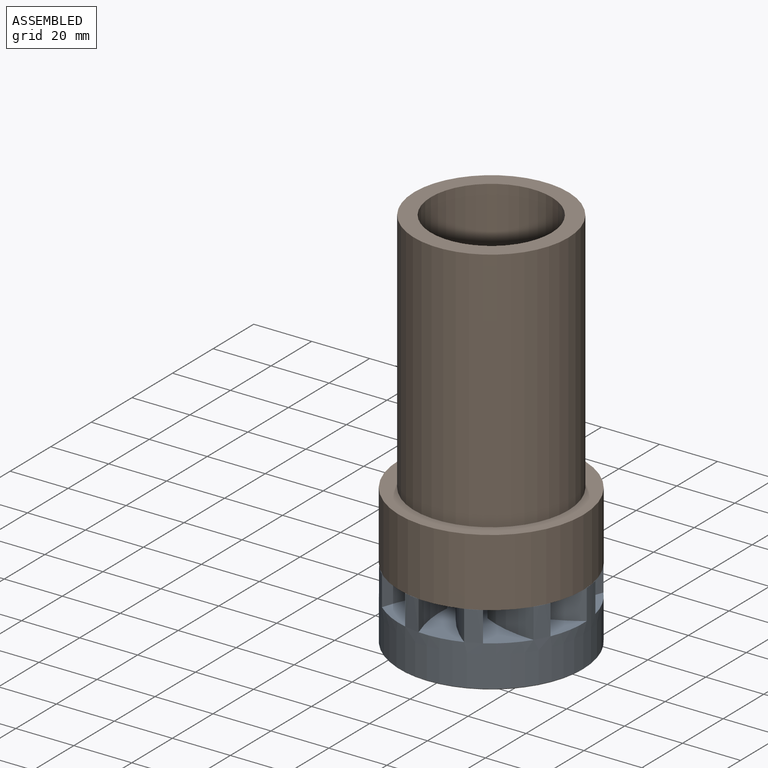
[diagram: assembled view]
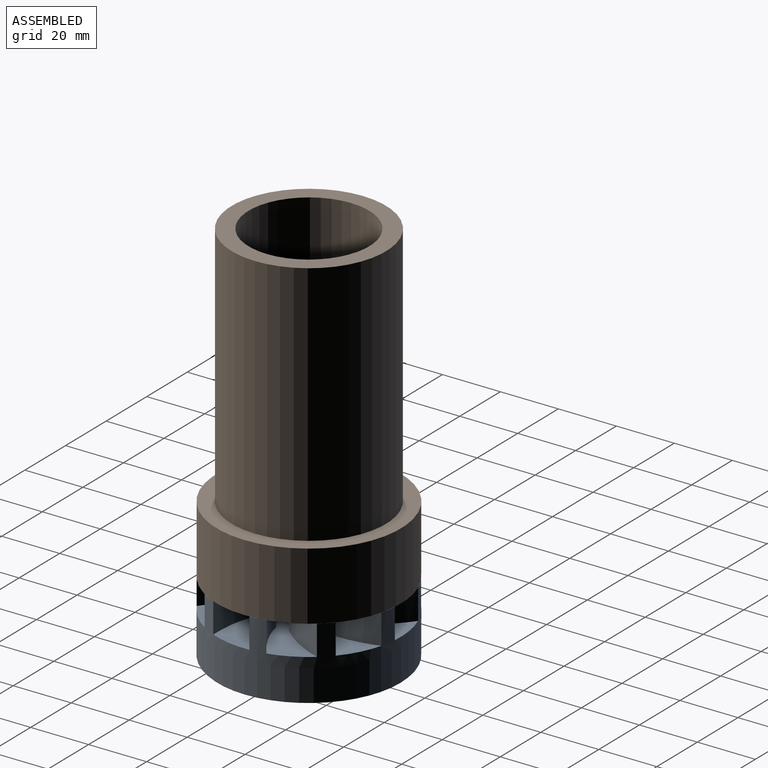
[diagram: assembled view, second angle]
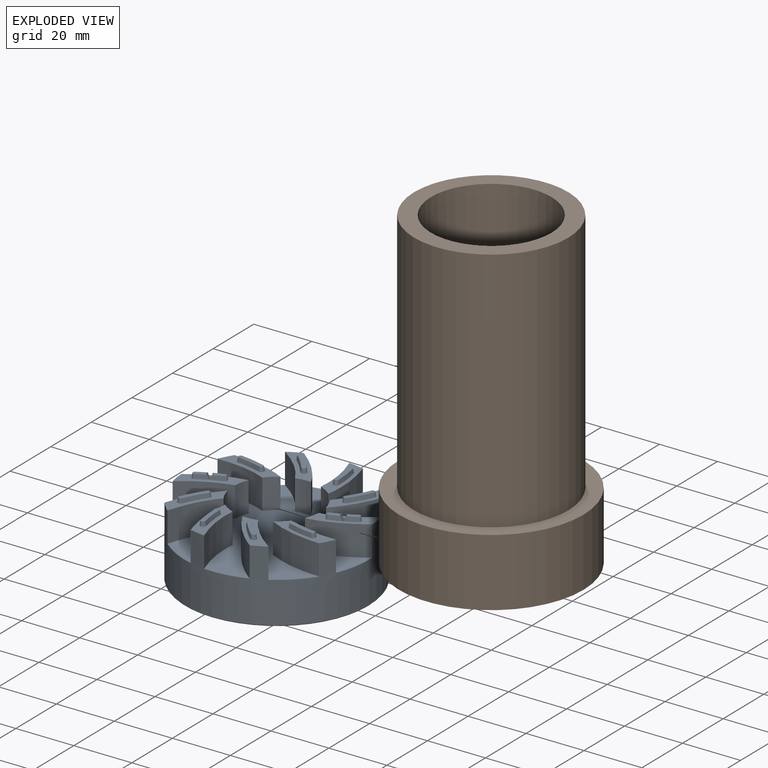
[diagram: exploded view]
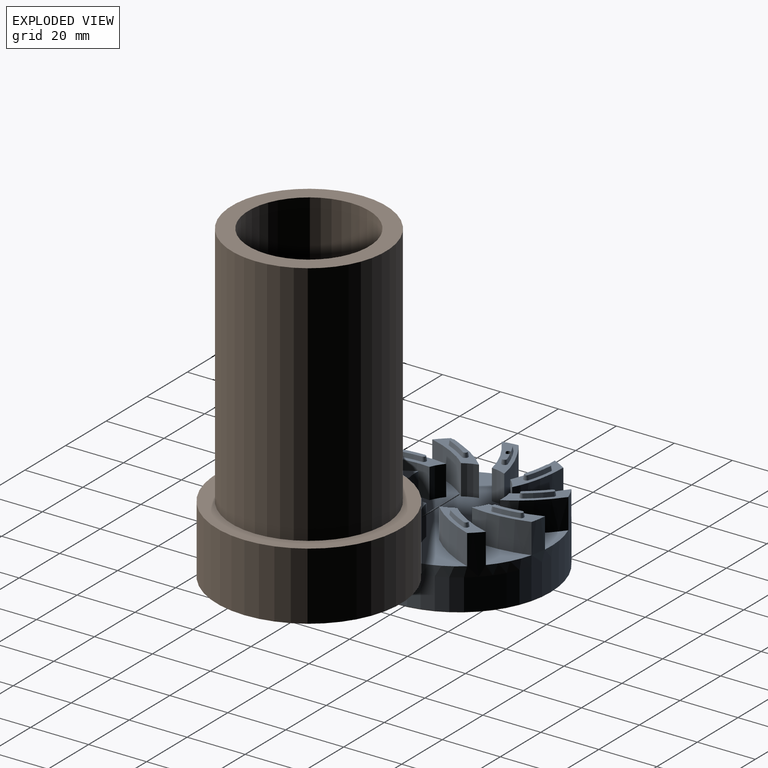
[diagram: exploded view, second angle]
ASSEMBLY  parts=2 mates=2
PART A: 104 faces, bbox 63.6x63.6x26.3 mm
  f0: cone r=40.49mm half-angle=10deg, axis (0,0,-1), area 11.4mm2, adj f3,f47,f86,f87,f88,f101
  f1: cone r=42.49mm half-angle=10deg, axis (0,0,1), area 5.9mm2, adj f47,f87,f88,f101
  f2: cone r=42.49mm half-angle=10deg, axis (0,0,1), area 5.9mm2, adj f3,f47,f86,f101
  f3: plane 4.36x2.71mm, normal (0,0,-1), area 5.8mm2, adj f0,f2,f86,f101
  f4: cone r=40.49mm half-angle=10deg, axis (0,0,-1), area 11.4mm2, adj f7,f48,f63,f64,f65,f99
  f5: cone r=42.49mm half-angle=10deg, axis (0,0,1), area 5.9mm2, adj f48,f64,f65,f99
  f6: cone r=42.49mm half-angle=10deg, axis (0,0,1), area 5.9mm2, adj f7,f48,f63,f99
  f7: plane 4.36x2.71mm, normal (0,0,-1), area 5.8mm2, adj f4,f6,f63,f99
  f8: cylinder r=15.02mm len=10.37mm, axis (0,0,-1), area 54.2mm2, adj f21,f27,f28,f50
  f9: cylinder r=15.02mm len=10.37mm, axis (0,0,-1), area 54.2mm2, adj f21,f25,f26,f51
  f10: cylinder r=15.02mm len=10.37mm, axis (0,0,-1), area 54.2mm2, adj f21,f23,f24,f52
  f11: cylinder r=15.02mm len=10.37mm, axis (0,0,-1), area 54.2mm2, adj f21,f29,f30,f49
  f12: cylinder r=15.02mm len=10.37mm, axis (0,0,-1), area 54.2mm2, adj f21,f31,f32,f48
  f13: cylinder r=15.02mm len=10.37mm, axis (0,0,-1), area 54.2mm2, adj f21,f41,f42,f43
  f14: cylinder r=15.02mm len=10.37mm, axis (0,0,-1), area 54.2mm2, adj f21,f39,f40,f44
  f15: cylinder r=15.02mm len=10.37mm, axis (0,0,-1), area 54.2mm2, adj f21,f37,f38,f45
  f16: cylinder r=15.02mm len=10.37mm, axis (0,0,-1), area 54.2mm2, adj f21,f35,f36,f46
  f17: cylinder r=15.02mm len=10.37mm, axis (0,0,-1), area 54.2mm2, adj f21,f33,f34,f47
  f18: cylinder r=31.8mm len=63.6mm, axis (0,0,-1), area 1250.5mm2, adj f21,f22,f23,f24,f25,f26,f27,f28
  f19: cylinder r=31.78mm len=63.56mm, axis (0,0,-1), area 2149.3mm2, adj f22,f103
  f20: plane 63.06x63.06mm, normal (0,0,1), area 3122.9mm2, adj f103
  f21: plane 63.6x63.6mm, normal (0,0,-1), area 2294.9mm2, adj f8,f9,f10,f11,f12,f13,f14,f15
  f22: plane 63.6x63.6mm, normal (0,0,1), area 4.1mm2, adj f18,f19
  f23: extruded ~12.8x12.41mm, area 186.5mm2, adj f10,f18,f21,f52
  f24: extruded ~14.71x12.75mm, area 203.6mm2, adj f10,f18,f21,f52
  f25: extruded ~17.65x10.37mm, area 186.5mm2, adj f9,f18,f21,f51
  f26: extruded ~19.39x10.37mm, area 203.6mm2, adj f9,f18,f21,f51
  f27: extruded ~15.76x10.37mm, area 186.5mm2, adj f8,f18,f21,f50
  f28: extruded ~16.67x10.37mm, area 203.6mm2, adj f8,f18,f21,f50
  f29: extruded ~17.57x10.37mm, area 186.5mm2, adj f11,f18,f21,f49
  f30: extruded ~18.96x10.37mm, area 203.6mm2, adj f11,f18,f21,f49
  f31: extruded ~16.01x10.37mm, area 186.5mm2, adj f12,f18,f21,f48
  f32: extruded ~17.93x10.37mm, area 203.6mm2, adj f12,f18,f21,f48
  f33: extruded ~16.01x10.37mm, area 186.5mm2, adj f17,f18,f21,f47
  f34: extruded ~17.93x10.37mm, area 203.6mm2, adj f17,f18,f21,f47
  f35: extruded ~17.57x10.37mm, area 186.5mm2, adj f16,f18,f21,f46
  f36: extruded ~18.96x10.37mm, area 203.6mm2, adj f16,f18,f21,f46
  f37: extruded ~12.8x12.41mm, area 186.5mm2, adj f15,f18,f21,f45
  f38: extruded ~14.71x12.75mm, area 203.6mm2, adj f15,f18,f21,f45
  f39: extruded ~17.65x10.37mm, area 186.5mm2, adj f14,f18,f21,f44
  f40: extruded ~19.39x10.37mm, area 203.6mm2, adj f14,f18,f21,f44
  f41: extruded ~15.76x10.37mm, area 186.5mm2, adj f13,f18,f21,f43
  f42: extruded ~16.67x10.37mm, area 203.6mm2, adj f13,f18,f21,f43
  f43: plane 20.55x12.07mm, normal (0,0,-1), area 68mm2, adj f13,f18,f41,f42,f66,f67,f68,f69
  f44: plane 20.33x7.86mm, normal (0,0,-1), area 68mm2, adj f14,f18,f39,f40,f71,f72,f73,f74
  f45: plane 17.59x15.15mm, normal (0,0,-1), area 68mm2, adj f15,f18,f37,f38,f76,f77,f78,f79
  f46: plane 21.49x7.81mm, normal (0,0,-1), area 68mm2, adj f16,f18,f35,f36,f81,f82,f83,f84
  f47: plane 17.93x12.91mm, normal (0,0,-1), area 68mm2, adj f0,f1,f2,f17,f18,f33,f34,f86
  f48: plane 17.93x12.91mm, normal (0,0,-1), area 68mm2, adj f4,f5,f6,f12,f18,f31,f32,f63
  f49: plane 21.49x7.81mm, normal (0,0,-1), area 68mm2, adj f11,f18,f29,f30,f58,f59,f60,f61
  f50: plane 20.55x12.07mm, normal (0,0,-1), area 68mm2, adj f8,f18,f27,f28,f89,f90,f91,f92
  f51: plane 20.33x7.86mm, normal (0,0,-1), area 68mm2, adj f9,f18,f25,f26,f94,f95,f96,f97
  f52: plane 17.59x15.15mm, normal (0,0,-1), area 68mm2, adj f10,f18,f23,f24,f53,f54,f55,f56
  f53: cone r=40.49mm half-angle=10deg, axis (0,0,-1), area 12.7mm2, adj f52,f54,f56,f57
  f54: cone r=1mm half-angle=10deg, axis (0,0,1), area 4.2mm2, adj f52,f53,f55,f57
  f55: cone r=42.49mm half-angle=10deg, axis (0,0,1), area 13.2mm2, adj f52,f54,f56,f57
  f56: cone r=1mm half-angle=10deg, axis (0,0,1), area 4.2mm2, adj f52,f53,f55,f57
  f57: plane 7.72x7.22mm, normal (0,0,-1), area 14.2mm2, adj f53,f54,f55,f56
  f58: cone r=40.49mm half-angle=10deg, axis (0,0,-1), area 12.7mm2, adj f49,f59,f61,f62
  f59: cone r=1mm half-angle=10deg, axis (0,0,1), area 4.2mm2, adj f49,f58,f60,f62
  f60: cone r=42.49mm half-angle=10deg, axis (0,0,1), area 13.2mm2, adj f49,f59,f61,f62
  f61: cone r=1mm half-angle=10deg, axis (0,0,1), area 4.2mm2, adj f49,f58,f60,f62
  f62: plane 9.79x3.15mm, normal (0,0,-1), area 14.2mm2, adj f58,f59,f60,f61
  f63: cone r=1mm half-angle=10deg, axis (0,0,1), area 4.2mm2, adj f4,f6,f7,f48
  f64: cone r=1mm half-angle=10deg, axis (0,0,1), area 4.2mm2, adj f4,f5,f48,f65
  f65: plane 4.21x3.08mm, normal (0,0,-1), area 5.8mm2, adj f4,f5,f64,f99
  f66: cone r=40.49mm half-angle=10deg, axis (0,0,-1), area 12.7mm2, adj f43,f67,f69,f70
  f67: cone r=1mm half-angle=10deg, axis (0,0,1), area 4.2mm2, adj f43,f66,f68,f70
  f68: cone r=42.49mm half-angle=10deg, axis (0,0,1), area 13.2mm2, adj f43,f67,f69,f70
  f69: cone r=1mm half-angle=10deg, axis (0,0,1), area 4.2mm2, adj f43,f66,f68,f70
  f70: plane 8.87x5.64mm, normal (0,0,-1), area 14.2mm2, adj f66,f67,f68,f69
  f71: cone r=40.49mm half-angle=10deg, axis (0,0,-1), area 12.7mm2, adj f44,f72,f74,f75
  f72: cone r=1mm half-angle=10deg, axis (0,0,1), area 4.2mm2, adj f44,f71,f73,f75
  f73: cone r=42.49mm half-angle=10deg, axis (0,0,1), area 13.2mm2, adj f44,f72,f74,f75
  f74: cone r=1mm half-angle=10deg, axis (0,0,1), area 4.2mm2, adj f44,f71,f73,f75
  f75: plane 9.9x2.45mm, normal (0,0,-1), area 14.2mm2, adj f71,f72,f73,f74
  f76: cone r=40.49mm half-angle=10deg, axis (0,0,-1), area 12.7mm2, adj f45,f77,f79,f80
  f77: cone r=1mm half-angle=10deg, axis (0,0,1), area 4.2mm2, adj f45,f76,f78,f80
  f78: cone r=42.49mm half-angle=10deg, axis (0,0,1), area 13.2mm2, adj f45,f77,f79,f80
  f79: cone r=1mm half-angle=10deg, axis (0,0,1), area 4.2mm2, adj f45,f76,f78,f80
  f80: plane 7.72x7.22mm, normal (0,0,-1), area 14.2mm2, adj f76,f77,f78,f79
  f81: cone r=40.49mm half-angle=10deg, axis (0,0,-1), area 12.7mm2, adj f46,f82,f84,f85
  f82: cone r=1mm half-angle=10deg, axis (0,0,1), area 4.2mm2, adj f46,f81,f83,f85
  f83: cone r=42.49mm half-angle=10deg, axis (0,0,1), area 13.2mm2, adj f46,f82,f84,f85
  f84: cone r=1mm half-angle=10deg, axis (0,0,1), area 4.2mm2, adj f46,f81,f83,f85
  f85: plane 9.79x3.15mm, normal (0,0,-1), area 14.2mm2, adj f81,f82,f83,f84
  f86: cone r=1mm half-angle=10deg, axis (0,0,1), area 4.2mm2, adj f0,f2,f3,f47
  f87: cone r=1mm half-angle=10deg, axis (0,0,1), area 4.2mm2, adj f0,f1,f47,f88
  f88: plane 4.21x3.08mm, normal (0,0,-1), area 5.8mm2, adj f0,f1,f87,f101
  f89: cone r=40.49mm half-angle=10deg, axis (0,0,-1), area 12.7mm2, adj f50,f90,f92,f93
  f90: cone r=1mm half-angle=10deg, axis (0,0,1), area 4.2mm2, adj f50,f89,f91,f93
  f91: cone r=42.49mm half-angle=10deg, axis (0,0,1), area 13.2mm2, adj f50,f90,f92,f93
  f92: cone r=1mm half-angle=10deg, axis (0,0,1), area 4.2mm2, adj f50,f89,f91,f93
  f93: plane 8.87x5.64mm, normal (0,0,-1), area 14.2mm2, adj f89,f90,f91,f92
  f94: cone r=40.49mm half-angle=10deg, axis (0,0,-1), area 12.7mm2, adj f51,f95,f97,f98
  f95: cone r=1mm half-angle=10deg, axis (0,0,1), area 4.2mm2, adj f51,f94,f96,f98
  f96: cone r=42.49mm half-angle=10deg, axis (0,0,1), area 13.2mm2, adj f51,f95,f97,f98
  f97: cone r=1mm half-angle=10deg, axis (0,0,1), area 4.2mm2, adj f51,f94,f96,f98
  f98: plane 9.9x2.45mm, normal (0,0,-1), area 14.2mm2, adj f94,f95,f96,f97
  f99: cylinder r=1mm len=15mm, axis (0,0,-1), area 91.3mm2, adj f4,f5,f6,f7,f48,f65,f100
  f100: plane 2x2mm, normal (0,0,-1), area 3.1mm2, adj f99
  f101: cylinder r=1mm len=15mm, axis (0,0,-1), area 91.3mm2, adj f0,f1,f2,f3,f47,f88,f102
  f102: plane 2x2mm, normal (0,0,-1), area 3.1mm2, adj f101
  f103: cone r=31.78mm half-angle=45deg, axis (0,0,-1), area 70.3mm2, adj f19,f20
PART B: 62 faces, bbox 63.6x63.6x108.4 mm
  f0: plane 63.6x63.6mm, normal (0,0,1), area 2236.7mm2, adj f1,f2,f8,f9,f10,f11,f13,f14
  f1: cylinder r=15.02mm len=30.04mm, axis (0,0,-1), area 2210.8mm2, adj f0,f5
  f2: cylinder r=31.8mm len=63.6mm, axis (0,0,-1), area 4679.9mm2, adj f0,f6
  f3: cylinder r=20.81mm len=85mm, axis (0,0,1), area 11114.2mm2, adj f5,f7
  f4: cylinder r=26.59mm len=85mm, axis (0,0,1), area 14201.8mm2, adj f6,f7
  f5: plane 41.62x41.62mm, normal (0,0,-1), area 651.6mm2, adj f1,f3
  f6: plane 63.6x63.6mm, normal (0,0,-1), area 955.2mm2, adj f2,f4
  f7: plane 53.18x53.18mm, normal (0,0,-1), area 860.9mm2, adj f3,f4
  f8: cylinder r=1.12mm len=2mm, axis (0,0,1), area 7.1mm2, adj f0,f9,f11,f12
  f9: cylinder r=40.36mm len=6.08mm, axis (0,0,1), area 16.5mm2, adj f0,f8,f10,f12
  f10: cylinder r=1.12mm len=2.03mm, axis (0,0,1), area 7.1mm2, adj f0,f9,f11,f12
  f11: cylinder r=42.61mm len=6.42mm, axis (0,0,1), area 17.5mm2, adj f0,f8,f10,f12
  f12: plane 8.5x8mm, normal (0,0,1), area 23.1mm2, adj f8,f9,f10,f11
  f13: cylinder r=1.12mm len=2.22mm, axis (0,0,1), area 7.1mm2, adj f0,f14,f16,f17
  f14: cylinder r=40.36mm len=8.2mm, axis (0,0,1), area 16.5mm2, adj f0,f13,f15,f17
  f15: cylinder r=1.12mm len=2.25mm, axis (0,0,1), area 7.1mm2, adj f0,f14,f16,f17
  f16: cylinder r=42.61mm len=8.66mm, axis (0,0,1), area 17.5mm2, adj f0,f13,f15,f17
  f17: plane 10.68x3.23mm, normal (0,0,1), area 23.1mm2, adj f13,f14,f15,f16
  f18: cylinder r=1.12mm len=2.16mm, axis (0,0,1), area 7.1mm2, adj f0,f19,f21,f22
  f19: cylinder r=40.36mm len=7.2mm, axis (0,0,1), area 16.5mm2, adj f0,f18,f20,f22
  f20: cylinder r=1.12mm len=2.04mm, axis (0,0,1), area 7.1mm2, adj f0,f19,f21,f22
  f21: cylinder r=42.61mm len=7.6mm, axis (0,0,1), area 17.5mm2, adj f0,f18,f20,f22
  f22: plane 9.65x6.41mm, normal (0,0,1), area 23.1mm2, adj f18,f19,f20,f21
  f23: cylinder r=1.12mm len=2.09mm, axis (0,0,1), area 7.1mm2, adj f0,f24,f26,f27
  f24: cylinder r=40.36mm len=7.51mm, axis (0,0,1), area 16.5mm2, adj f0,f23,f25,f27
  f25: cylinder r=1.12mm len=2.19mm, axis (0,0,1), area 7.1mm2, adj f0,f24,f26,f27
  f26: cylinder r=42.61mm len=7.93mm, axis (0,0,1), area 17.5mm2, adj f0,f23,f25,f27
  f27: plane 9.97x5.79mm, normal (0,0,1), area 20mm2, adj f23,f24,f25,f26,f60
  f28: cylinder r=1.12mm len=2.25mm, axis (0,0,1), area 7.1mm2, adj f0,f29,f31,f32
  f29: cylinder r=40.36mm len=8.1mm, axis (0,0,1), area 16.5mm2, adj f0,f28,f30,f32
  f30: cylinder r=1.12mm len=2.2mm, axis (0,0,1), area 7.1mm2, adj f0,f29,f31,f32
  f31: cylinder r=42.61mm len=8.55mm, axis (0,0,1), area 17.5mm2, adj f0,f28,f30,f32
  f32: plane 10.57x3.92mm, normal (0,0,1), area 23.1mm2, adj f28,f29,f30,f31
  f33: cylinder r=1.12mm len=2mm, axis (0,0,1), area 7.1mm2, adj f0,f34,f36,f37
  f34: cylinder r=40.36mm len=6.08mm, axis (0,0,1), area 16.5mm2, adj f0,f33,f35,f37
  f35: cylinder r=1.12mm len=2.03mm, axis (0,0,1), area 7.1mm2, adj f0,f34,f36,f37
  f36: cylinder r=42.61mm len=6.42mm, axis (0,0,1), area 17.5mm2, adj f0,f33,f35,f37
  f37: plane 8.5x8mm, normal (0,0,1), area 23.1mm2, adj f33,f34,f35,f36
  f38: cylinder r=1.12mm len=2.22mm, axis (0,0,1), area 7.1mm2, adj f0,f39,f41,f42
  f39: cylinder r=40.36mm len=8.2mm, axis (0,0,1), area 16.5mm2, adj f0,f38,f40,f42
  f40: cylinder r=1.12mm len=2.25mm, axis (0,0,1), area 7.1mm2, adj f0,f39,f41,f42
  f41: cylinder r=42.61mm len=8.66mm, axis (0,0,1), area 17.5mm2, adj f0,f38,f40,f42
  f42: plane 10.68x3.23mm, normal (0,0,1), area 23.1mm2, adj f38,f39,f40,f41
  f43: cylinder r=1.12mm len=2.16mm, axis (0,0,1), area 7.1mm2, adj f0,f44,f46,f47
  f44: cylinder r=40.36mm len=7.2mm, axis (0,0,1), area 16.5mm2, adj f0,f43,f45,f47
  f45: cylinder r=1.12mm len=2.04mm, axis (0,0,1), area 7.1mm2, adj f0,f44,f46,f47
  f46: cylinder r=42.61mm len=7.6mm, axis (0,0,1), area 17.5mm2, adj f0,f43,f45,f47
  f47: plane 9.65x6.41mm, normal (0,0,1), area 23.1mm2, adj f43,f44,f45,f46
  f48: cylinder r=1.12mm len=2.09mm, axis (0,0,1), area 7.1mm2, adj f0,f49,f51,f52
  f49: cylinder r=40.36mm len=7.51mm, axis (0,0,1), area 16.5mm2, adj f0,f48,f50,f52
  f50: cylinder r=1.12mm len=2.19mm, axis (0,0,1), area 7.1mm2, adj f0,f49,f51,f52
  f51: cylinder r=42.61mm len=7.93mm, axis (0,0,1), area 17.5mm2, adj f0,f48,f50,f52
  f52: plane 9.97x5.79mm, normal (0,0,1), area 20mm2, adj f48,f49,f50,f51,f58
  f53: cylinder r=1.12mm len=2.25mm, axis (0,0,1), area 7.1mm2, adj f0,f54,f56,f57
  f54: cylinder r=40.36mm len=8.1mm, axis (0,0,1), area 16.5mm2, adj f0,f53,f55,f57
  f55: cylinder r=1.12mm len=2.2mm, axis (0,0,1), area 7.1mm2, adj f0,f54,f56,f57
  f56: cylinder r=42.61mm len=8.55mm, axis (0,0,1), area 17.5mm2, adj f0,f53,f55,f57
  f57: plane 10.57x3.92mm, normal (0,0,1), area 23.1mm2, adj f53,f54,f55,f56
  f58: cylinder r=1mm len=13mm, axis (0,0,1), area 81.7mm2, adj f52,f59
  f59: plane 2x2mm, normal (0,0,1), area 3.1mm2, adj f58
  f60: cylinder r=1mm len=13mm, axis (0,0,1), area 81.7mm2, adj f27,f61
  f61: plane 2x2mm, normal (0,0,1), area 3.1mm2, adj f60
PLACE A rot(axis=(1,0,0),180deg) t=(0,0,48.27)mm
PLACE B rot(axis=(0,1,0),180deg) t=(0,0,48.27)mm
MATE revolute A.f8 <-> B.f1  axis (0,0,1) through (0,0,24.85)mm
MATE cylindrical A.f64 <-> B.f48  axis (0,0,1) through (-27.17,-1.46,24.85)mm
